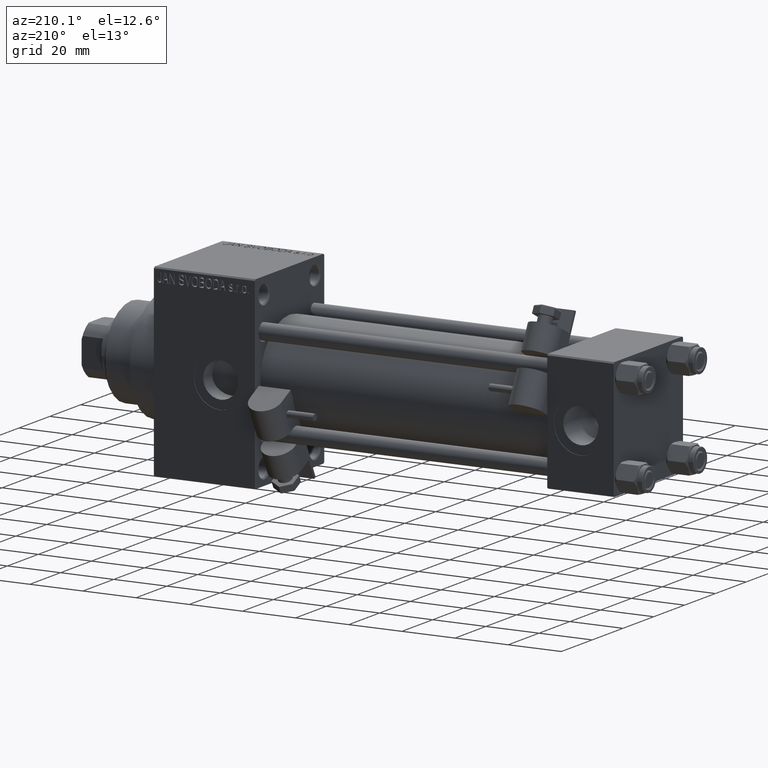
[diagram: clean part render]
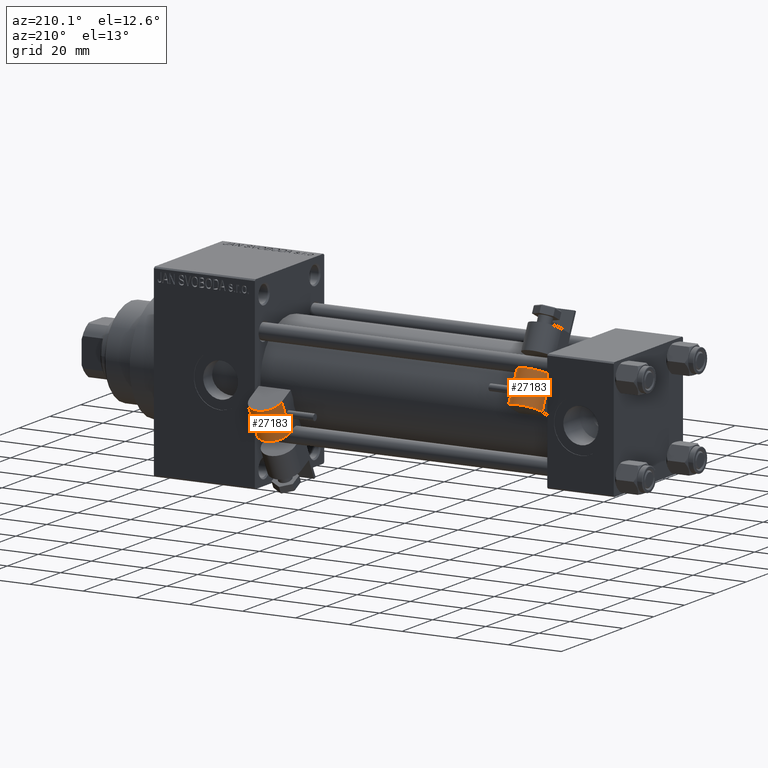
[diagram: same view with one multi-face feature highlighted, each face labeled with its STEP entity id]
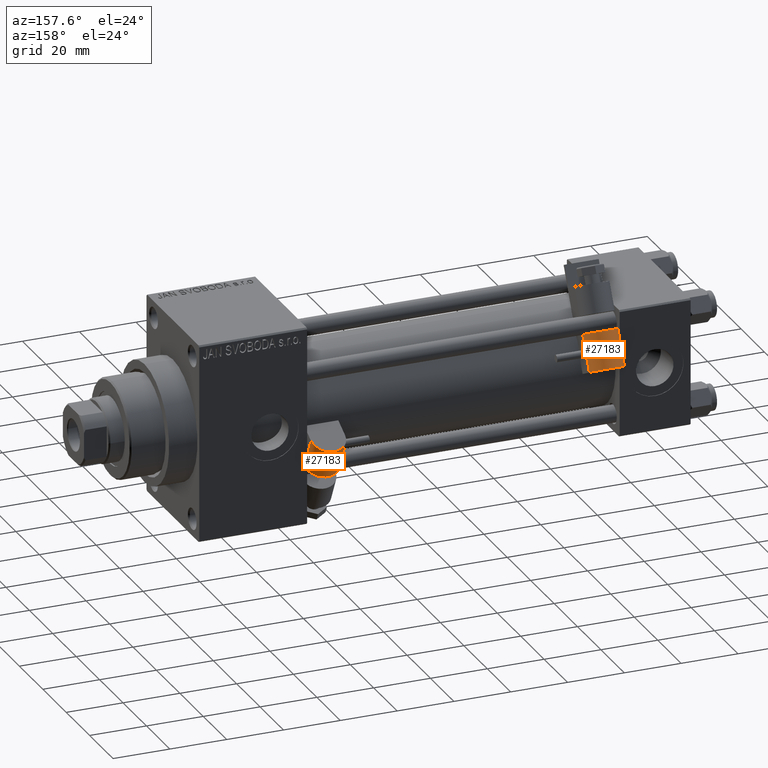
[diagram: same view with one multi-face feature highlighted, each face labeled with its STEP entity id]
A machine part, auxiliary view. The highlighted faces form ONE feature: a constant-radius fillet chain: 2 tangent blend faces with common blend radius 6 mm. The faces share edges in the B-rep.
A second angle (auxiliary view) of the same feature is appended — it is thin or edge-on in the first view.
Their STEP definitions:
[1] entity #27183 (Cylinder):
#1999 = EDGE_CURVE ( 'NONE', #3744, #42079, #11307, .T. ) ;
#2694 = CARTESIAN_POINT ( 'NONE',  ( 28.24000000000000199, 6.500000000000000000, -5.999999999999980460 ) ) ;
#3744 = VERTEX_POINT ( 'NONE', #46205 ) ;
#5290 = CARTESIAN_POINT ( 'NONE',  ( 15.74000000000000021, 6.500000000000000000, 2.255140518769849223E-14 ) ) ;
#6635 = DIRECTION ( 'NONE',  ( 1.000000000000000000, 0.000000000000000000, 0.000000000000000000 ) ) ;
#7522 = CARTESIAN_POINT ( 'NONE',  ( 28.24000000000000199, 6.500000000000000000, 2.255140518769849223E-14 ) ) ;
#7782 = DIRECTION ( 'NONE',  ( 0.000000000000000000, 0.000000000000000000, 1.000000000000000000 ) ) ;
#10725 = ORIENTED_EDGE ( 'NONE', *, *, #1999, .T. ) ;
#11307 = LINE ( 'NONE', #2694, #28501 ) ;
#11444 = DIRECTION ( 'NONE',  ( 0.000000000000000000, 0.000000000000000000, -1.000000000000000000 ) ) ;
#15028 = EDGE_CURVE ( 'NONE', #3744, #31524, #49884, .T. ) ;
#18194 = DIRECTION ( 'NONE',  ( -1.000000000000000000, -0.000000000000000000, -0.000000000000000000 ) ) ;
#18604 = LINE ( 'NONE', #41442, #27283 ) ;
#19203 = DIRECTION ( 'NONE',  ( -1.000000000000000000, -0.000000000000000000, -0.000000000000000000 ) ) ;
#19556 = CARTESIAN_POINT ( 'NONE',  ( 15.74000000000000021, 6.499999999999999112, 6.000000000000006217 ) ) ;
#20063 = EDGE_LOOP ( 'NONE', ( #32926, #32525, #34111, #10725 ) ) ;
#25734 = DIRECTION ( 'NONE',  ( -1.000000000000000000, -0.000000000000000000, -0.000000000000000000 ) ) ;
#27183 = ADVANCED_FACE ( 'NONE', ( #30852 ), #32044, .T. ) ;
#27219 = AXIS2_PLACEMENT_3D ( 'NONE', #41391, #6635, #11444 ) ;
#27283 = VECTOR ( 'NONE', #25734, 1000.000000000000000 ) ;
#28052 = AXIS2_PLACEMENT_3D ( 'NONE', #5290, #29619, #36228 ) ;
#28501 = VECTOR ( 'NONE', #18194, 1000.000000000000000 ) ;
#28937 = CARTESIAN_POINT ( 'NONE',  ( 28.24000000000000199, 6.499999999999999112, 6.000000000000006217 ) ) ;
#29619 = DIRECTION ( 'NONE',  ( 1.000000000000000000, 0.000000000000000000, 0.000000000000000000 ) ) ;
#30852 = FACE_OUTER_BOUND ( 'NONE', #20063, .T. ) ;
#31524 = VERTEX_POINT ( 'NONE', #28937 ) ;
#32044 = CYLINDRICAL_SURFACE ( 'NONE', #37556, 6.000000000000002665 ) ;
#32525 = ORIENTED_EDGE ( 'NONE', *, *, #36358, .F. ) ;
#32680 = EDGE_CURVE ( 'NONE', #42079, #37287, #43443, .T. ) ;
#32926 = ORIENTED_EDGE ( 'NONE', *, *, #32680, .T. ) ;
#34111 = ORIENTED_EDGE ( 'NONE', *, *, #15028, .F. ) ;
#36228 = DIRECTION ( 'NONE',  ( 0.000000000000000000, 0.000000000000000000, -1.000000000000000000 ) ) ;
#36358 = EDGE_CURVE ( 'NONE', #31524, #37287, #18604, .T. ) ;
#37287 = VERTEX_POINT ( 'NONE', #19556 ) ;
#37556 = AXIS2_PLACEMENT_3D ( 'NONE', #7522, #19203, #7782 ) ;
#37913 = CARTESIAN_POINT ( 'NONE',  ( 15.74000000000000021, 6.500000000000000000, -5.999999999999980460 ) ) ;
#41391 = CARTESIAN_POINT ( 'NONE',  ( 28.24000000000000199, 6.500000000000000000, 2.255140518769849223E-14 ) ) ;
#41442 = CARTESIAN_POINT ( 'NONE',  ( 28.24000000000000199, 6.499999999999999112, 6.000000000000006217 ) ) ;
#42079 = VERTEX_POINT ( 'NONE', #37913 ) ;
#43443 = CIRCLE ( 'NONE', #28052, 6.000000000000002665 ) ;
#46205 = CARTESIAN_POINT ( 'NONE',  ( 28.24000000000000199, 6.500000000000000000, -5.999999999999980460 ) ) ;
#49884 = CIRCLE ( 'NONE', #27219, 6.000000000000002665 ) ;
[2] entity #27183 (Cylinder):
#1999 = EDGE_CURVE ( 'NONE', #3744, #42079, #11307, .T. ) ;
#2694 = CARTESIAN_POINT ( 'NONE',  ( 28.24000000000000199, 6.500000000000000000, -5.999999999999980460 ) ) ;
#3744 = VERTEX_POINT ( 'NONE', #46205 ) ;
#5290 = CARTESIAN_POINT ( 'NONE',  ( 15.74000000000000021, 6.500000000000000000, 2.255140518769849223E-14 ) ) ;
#6635 = DIRECTION ( 'NONE',  ( 1.000000000000000000, 0.000000000000000000, 0.000000000000000000 ) ) ;
#7522 = CARTESIAN_POINT ( 'NONE',  ( 28.24000000000000199, 6.500000000000000000, 2.255140518769849223E-14 ) ) ;
#7782 = DIRECTION ( 'NONE',  ( 0.000000000000000000, 0.000000000000000000, 1.000000000000000000 ) ) ;
#10725 = ORIENTED_EDGE ( 'NONE', *, *, #1999, .T. ) ;
#11307 = LINE ( 'NONE', #2694, #28501 ) ;
#11444 = DIRECTION ( 'NONE',  ( 0.000000000000000000, 0.000000000000000000, -1.000000000000000000 ) ) ;
#15028 = EDGE_CURVE ( 'NONE', #3744, #31524, #49884, .T. ) ;
#18194 = DIRECTION ( 'NONE',  ( -1.000000000000000000, -0.000000000000000000, -0.000000000000000000 ) ) ;
#18604 = LINE ( 'NONE', #41442, #27283 ) ;
#19203 = DIRECTION ( 'NONE',  ( -1.000000000000000000, -0.000000000000000000, -0.000000000000000000 ) ) ;
#19556 = CARTESIAN_POINT ( 'NONE',  ( 15.74000000000000021, 6.499999999999999112, 6.000000000000006217 ) ) ;
#20063 = EDGE_LOOP ( 'NONE', ( #32926, #32525, #34111, #10725 ) ) ;
#25734 = DIRECTION ( 'NONE',  ( -1.000000000000000000, -0.000000000000000000, -0.000000000000000000 ) ) ;
#27183 = ADVANCED_FACE ( 'NONE', ( #30852 ), #32044, .T. ) ;
#27219 = AXIS2_PLACEMENT_3D ( 'NONE', #41391, #6635, #11444 ) ;
#27283 = VECTOR ( 'NONE', #25734, 1000.000000000000000 ) ;
#28052 = AXIS2_PLACEMENT_3D ( 'NONE', #5290, #29619, #36228 ) ;
#28501 = VECTOR ( 'NONE', #18194, 1000.000000000000000 ) ;
#28937 = CARTESIAN_POINT ( 'NONE',  ( 28.24000000000000199, 6.499999999999999112, 6.000000000000006217 ) ) ;
#29619 = DIRECTION ( 'NONE',  ( 1.000000000000000000, 0.000000000000000000, 0.000000000000000000 ) ) ;
#30852 = FACE_OUTER_BOUND ( 'NONE', #20063, .T. ) ;
#31524 = VERTEX_POINT ( 'NONE', #28937 ) ;
#32044 = CYLINDRICAL_SURFACE ( 'NONE', #37556, 6.000000000000002665 ) ;
#32525 = ORIENTED_EDGE ( 'NONE', *, *, #36358, .F. ) ;
#32680 = EDGE_CURVE ( 'NONE', #42079, #37287, #43443, .T. ) ;
#32926 = ORIENTED_EDGE ( 'NONE', *, *, #32680, .T. ) ;
#34111 = ORIENTED_EDGE ( 'NONE', *, *, #15028, .F. ) ;
#36228 = DIRECTION ( 'NONE',  ( 0.000000000000000000, 0.000000000000000000, -1.000000000000000000 ) ) ;
#36358 = EDGE_CURVE ( 'NONE', #31524, #37287, #18604, .T. ) ;
#37287 = VERTEX_POINT ( 'NONE', #19556 ) ;
#37556 = AXIS2_PLACEMENT_3D ( 'NONE', #7522, #19203, #7782 ) ;
#37913 = CARTESIAN_POINT ( 'NONE',  ( 15.74000000000000021, 6.500000000000000000, -5.999999999999980460 ) ) ;
#41391 = CARTESIAN_POINT ( 'NONE',  ( 28.24000000000000199, 6.500000000000000000, 2.255140518769849223E-14 ) ) ;
#41442 = CARTESIAN_POINT ( 'NONE',  ( 28.24000000000000199, 6.499999999999999112, 6.000000000000006217 ) ) ;
#42079 = VERTEX_POINT ( 'NONE', #37913 ) ;
#43443 = CIRCLE ( 'NONE', #28052, 6.000000000000002665 ) ;
#46205 = CARTESIAN_POINT ( 'NONE',  ( 28.24000000000000199, 6.500000000000000000, -5.999999999999980460 ) ) ;
#49884 = CIRCLE ( 'NONE', #27219, 6.000000000000002665 ) ;